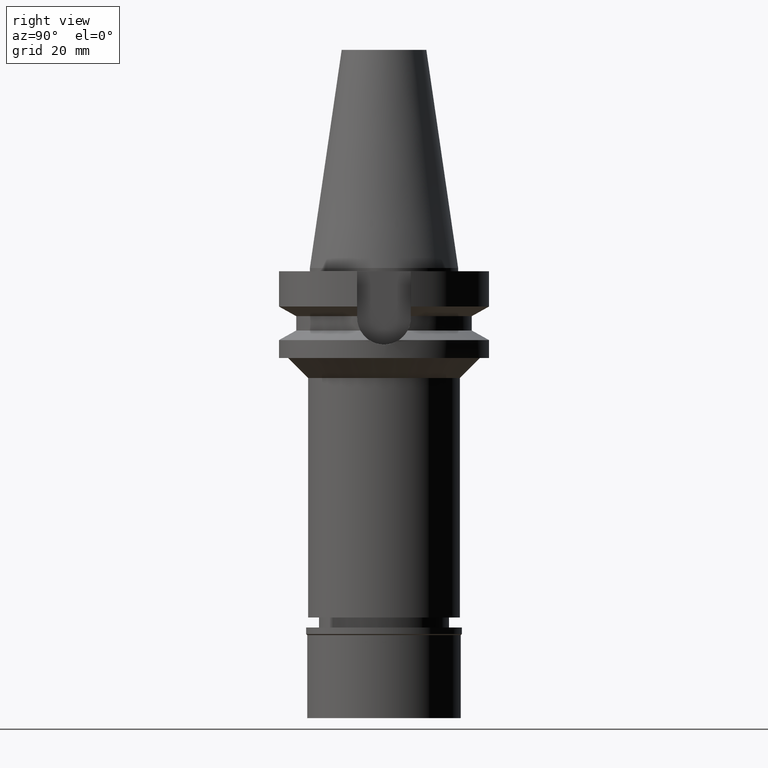
[diagram: clean part render]
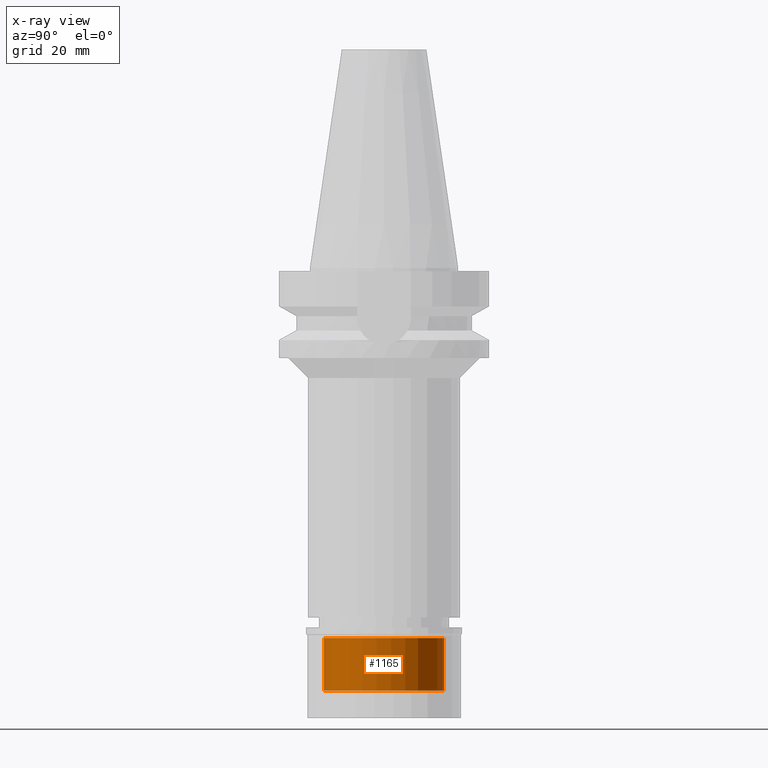
[diagram: x-ray — body ghosted, one internal face saturated and labeled with its STEP entity id]
A machine part, right view, then the same camera in x-ray: the body is ghosted and one INTERNAL B-rep face — a face not visible from any outside direction — is saturated and labeled: STEP entity #1165.
In plain terms, the highlighted cylindrical surface (partial cylindrical patch) has radius 18 mm, axis along (0, 0, -1).
Its self-contained STEP definition (entity closure, byte-faithful):
#134 = CARTESIAN_POINT ( 'NONE',  ( 0.0000000000000000000, 0.0000000000000000000, -3.200000000000000178 ) ) ;
#176 = ORIENTED_EDGE ( 'NONE', *, *, #2627, .F. ) ;
#217 = CARTESIAN_POINT ( 'NONE',  ( 0.0000000000000000000, 18.00000000000000000, -19.00000000000000000 ) ) ;
#386 = EDGE_CURVE ( 'NONE', #2078, #959, #1399, .T. ) ;
#418 = VECTOR ( 'NONE', #817, 1000.000000000000000 ) ;
#571 = DIRECTION ( 'NONE',  ( 0.0000000000000000000, 0.0000000000000000000, 1.000000000000000000 ) ) ;
#597 = CARTESIAN_POINT ( 'NONE',  ( 0.0000000000000000000, 0.0000000000000000000, -19.00000000000000000 ) ) ;
#721 = DIRECTION ( 'NONE',  ( 0.0000000000000000000, -1.000000000000000000, 0.0000000000000000000 ) ) ;
#758 = CARTESIAN_POINT ( 'NONE',  ( 0.0000000000000000000, -18.00000000000000000, -3.200000000000000178 ) ) ;
#809 = VECTOR ( 'NONE', #906, 1000.000000000000000 ) ;
#817 = DIRECTION ( 'NONE',  ( 0.0000000000000000000, 0.0000000000000000000, 1.000000000000000000 ) ) ;
#906 = DIRECTION ( 'NONE',  ( 0.0000000000000000000, 0.0000000000000000000, 1.000000000000000000 ) ) ;
#948 = CYLINDRICAL_SURFACE ( 'NONE', #2344, 18.00000000000000000 ) ;
#959 = VERTEX_POINT ( 'NONE', #2938 ) ;
#997 = CARTESIAN_POINT ( 'NONE',  ( 0.0000000000000000000, -18.00000000000000000, -19.00000000000000000 ) ) ;
#1165 = ADVANCED_FACE ( 'NONE', ( #3112 ), #948, .F. ) ;
#1202 = EDGE_CURVE ( 'NONE', #1287, #2078, #2230, .T. ) ;
#1245 = AXIS2_PLACEMENT_3D ( 'NONE', #597, #2478, #1538 ) ;
#1287 = VERTEX_POINT ( 'NONE', #2955 ) ;
#1351 = ORIENTED_EDGE ( 'NONE', *, *, #2453, .T. ) ;
#1399 = CIRCLE ( 'NONE', #1888, 18.00000000000000000 ) ;
#1538 = DIRECTION ( 'NONE',  ( 0.0000000000000000000, 1.000000000000000000, 0.0000000000000000000 ) ) ;
#1707 = ORIENTED_EDGE ( 'NONE', *, *, #386, .T. ) ;
#1821 = VERTEX_POINT ( 'NONE', #217 ) ;
#1825 = CARTESIAN_POINT ( 'NONE',  ( 0.0000000000000000000, 18.00000000000000000, -19.00000000000000000 ) ) ;
#1888 = AXIS2_PLACEMENT_3D ( 'NONE', #134, #571, #2523 ) ;
#1898 = CARTESIAN_POINT ( 'NONE',  ( 0.0000000000000000000, 0.0000000000000000000, 0.0000000000000000000 ) ) ;
#1921 = EDGE_LOOP ( 'NONE', ( #1351, #3050, #1707, #176 ) ) ;
#2078 = VERTEX_POINT ( 'NONE', #758 ) ;
#2139 = CIRCLE ( 'NONE', #1245, 18.00000000000000000 ) ;
#2230 = LINE ( 'NONE', #997, #418 ) ;
#2344 = AXIS2_PLACEMENT_3D ( 'NONE', #1898, #2880, #721 ) ;
#2453 = EDGE_CURVE ( 'NONE', #1821, #1287, #2139, .T. ) ;
#2478 = DIRECTION ( 'NONE',  ( 0.0000000000000000000, 0.0000000000000000000, -1.000000000000000000 ) ) ;
#2523 = DIRECTION ( 'NONE',  ( 0.0000000000000000000, -1.000000000000000000, 0.0000000000000000000 ) ) ;
#2627 = EDGE_CURVE ( 'NONE', #1821, #959, #3042, .T. ) ;
#2880 = DIRECTION ( 'NONE',  ( 0.0000000000000000000, 0.0000000000000000000, -1.000000000000000000 ) ) ;
#2938 = CARTESIAN_POINT ( 'NONE',  ( 0.0000000000000000000, 18.00000000000000000, -3.200000000000000178 ) ) ;
#2955 = CARTESIAN_POINT ( 'NONE',  ( 0.0000000000000000000, -18.00000000000000000, -19.00000000000000000 ) ) ;
#3042 = LINE ( 'NONE', #1825, #809 ) ;
#3050 = ORIENTED_EDGE ( 'NONE', *, *, #1202, .T. ) ;
#3112 = FACE_OUTER_BOUND ( 'NONE', #1921, .T. ) ;